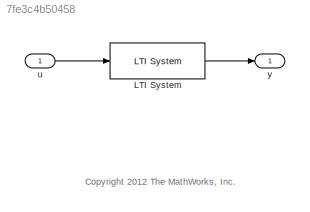
MODEL slx_7fe3c4b50458
KIND model
BLOCK [Reference] LTI System  REF=cstblocks/LTI System
  IC = []
  Ports = [1, 1]
  SourceBlock = cstblocks/LTI System
  SourceType = LTI Block
  sys = tf( 6.556, [0.0004103, 0.04056, 1, 0]);
BLOCK [Inport] u
  IconDisplay = Port number
BLOCK [Outport] y
  IconDisplay = Port number
ANNOTATION (root): <copyright redacted>
LINE LTI System:1 -> y:1
LINE u:1 -> LTI System:1
